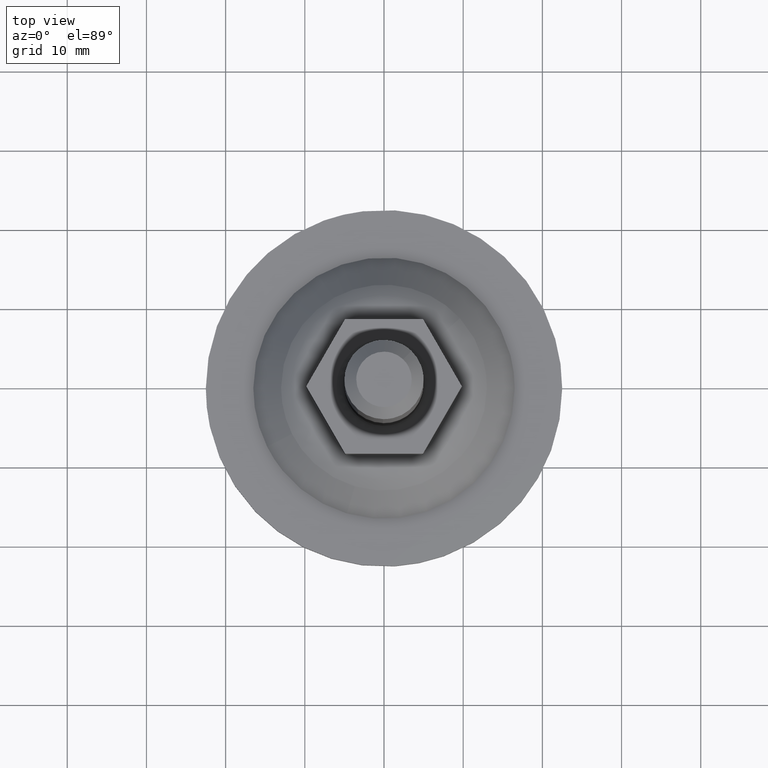
[diagram: clean part render]
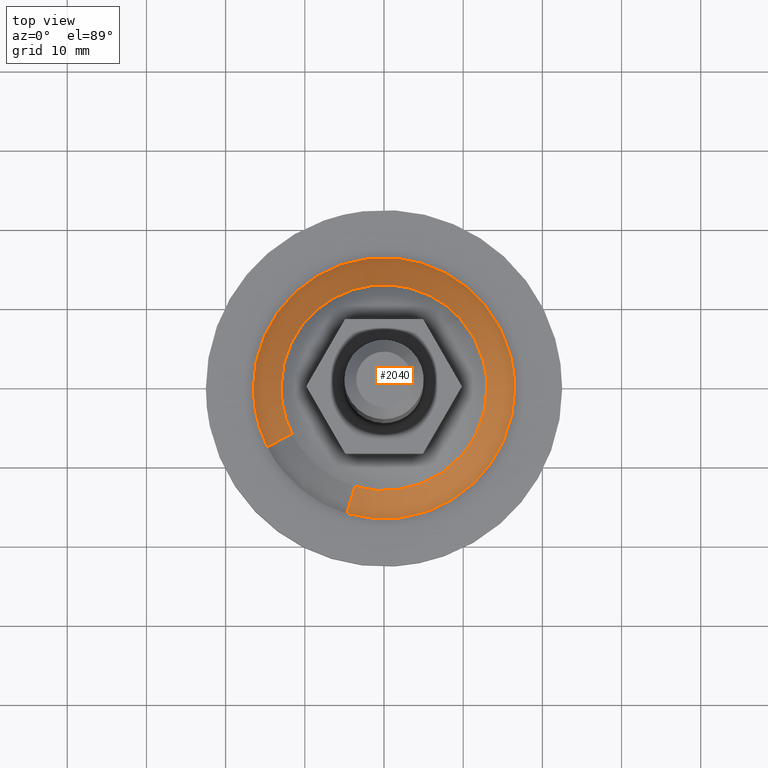
[diagram: same view with one face highlighted and labeled with its STEP entity id]
A machine part, top view. The second image highlights one B-rep face of the part: STEP entity #2040.
In plain terms, the highlighted face is a freeform B-spline surface patch.
Its self-contained STEP definition (entity closure, byte-faithful):
#1870=CARTESIAN_POINT('',(-11.545609309246176,-5.782003297031094,7.067842632040565));
#1871=CARTESIAN_POINT('',(-13.829122567811666,-1.222242504535822,7.067842632040566));
#1872=CARTESIAN_POINT('',(-12.380759833860211,3.667348140673875,7.067842632040566));
#1873=CARTESIAN_POINT('',(-8.713411693186334,16.048107974534080,7.067842632040566));
#1874=CARTESIAN_POINT('',(3.667348140673875,12.380759833860211,7.067842632040566));
#1875=CARTESIAN_POINT('',(16.048107974534080,8.713411693186334,7.067842632040566));
#1876=CARTESIAN_POINT('',(12.380759833860211,-3.667348140673875,7.067842632040566));
#1877=CARTESIAN_POINT('',(8.713411693186334,-16.048107974534080,7.067842632040566));
#1878=CARTESIAN_POINT('',(-3.667348140673875,-12.380759833860211,7.067842632040566));
#1879=CARTESIAN_POINT('',(-14.833537294960239,-7.428586854866791,2.898303934198985));
#1880=CARTESIAN_POINT('',(-17.767343400571384,-1.570309482064178,2.898303934198985));
#1881=CARTESIAN_POINT('',(-15.906519770111800,4.711725813788239,2.898303934198985));
#1882=CARTESIAN_POINT('',(-11.194793956323558,20.618245583900030,2.898303934198986));
#1883=CARTESIAN_POINT('',(4.711725813788239,15.906519770111800,2.898303934198985));
#1884=CARTESIAN_POINT('',(20.618245583900030,11.194793956323558,2.898303934198986));
#1885=CARTESIAN_POINT('',(15.906519770111800,-4.711725813788239,2.898303934198985));
#1886=CARTESIAN_POINT('',(11.194793956323558,-20.618245583900030,2.898303934198986));
#1887=CARTESIAN_POINT('',(-4.711725813788239,-15.906519770111800,2.898303934198985));
#1895=(BOUNDED_SURFACE()B_SPLINE_SURFACE(2,1,((#1870,#1879),(#1871,#1880),(#1872,#1881),(#1873,#1882),(#1874,#1883),(#1875,#1884),(#1876,#1885),(#1877,#1886),(#1878,#1887)),.UNSPECIFIED.,.F.,.F.,.U.)B_SPLINE_SURFACE_WITH_KNOTS((3,2,2,2,3),(2,2),(0.0,13.193613231267360,40.680307463074378,68.167001694881378,95.653695926688385),(0.0,5.559384930455442),.UNSPECIFIED.)GEOMETRIC_REPRESENTATION_ITEM()RATIONAL_B_SPLINE_SURFACE(((0.853787705168325,0.853787705168325),(0.859411254969543,0.859411254969543),(1.0,1.0),(0.707106781186548,0.707106781186548),(1.0,1.0),(0.707106781186548,0.707106781186548),(1.0,1.0),(0.707106781186548,0.707106781186548),(1.0,1.0)))REPRESENTATION_ITEM('')SURFACE());
#1896=CARTESIAN_POINT('',(-11.623846739051210,-5.821184345466673,6.968626958011663));
#1897=VERTEX_POINT('',#1896);
#1898=CARTESIAN_POINT('',(-13.000000007568699,0.0,6.968626958014780));
#1899=VERTEX_POINT('',#1898);
#1900=CARTESIAN_POINT('',(-11.623846739051206,-5.821184345466673,6.968626958011663));
#1901=CARTESIAN_POINT('',(-13.000000007568701,-3.073256478335910,6.968626958014780));
#1902=CARTESIAN_POINT('',(-13.000000007568699,0.0,6.968626958014780));
#1910=(BOUNDED_CURVE()B_SPLINE_CURVE(2,(#1900,#1901,#1902),.UNSPECIFIED.,.F.,.U.)B_SPLINE_CURVE_WITH_KNOTS((3,3),(0.923872947074374,1.0),.UNSPECIFIED.)CURVE()GEOMETRIC_REPRESENTATION_ITEM()RATIONAL_B_SPLINE_CURVE((0.875940413896637,0.910811609719325,1.0))REPRESENTATION_ITEM(''));
#1911=EDGE_CURVE('',#1897,#1899,#1910,.T.);
#1912=ORIENTED_EDGE('',*,*,#1911,.T.);
#1913=CARTESIAN_POINT('',(9.587670531229460,8.779326510678445,6.968626958026949));
#1914=VERTEX_POINT('',#1913);
#1915=CARTESIAN_POINT('',(-13.000000007568699,0.0,6.968626958014780));
#1916=CARTESIAN_POINT('',(-13.000000007568698,13.000000007568698,6.968626958014783));
#1917=CARTESIAN_POINT('',(0.0,13.000000007568699,6.968626958014780));
#1918=CARTESIAN_POINT('',(5.722845326469013,13.000000007568696,6.968626958014780));
#1919=CARTESIAN_POINT('',(9.587670531229461,8.779326510678445,6.968626958026949));
#1927=(BOUNDED_CURVE()B_SPLINE_CURVE(2,(#1915,#1916,#1917,#1918,#1919),.UNSPECIFIED.,.F.,.U.)B_SPLINE_CURVE_WITH_KNOTS((3,2,3),(0.0,0.250000000000000,0.381637486163504),.UNSPECIFIED.)CURVE()GEOMETRIC_REPRESENTATION_ITEM()RATIONAL_B_SPLINE_CURVE((1.0,0.707106781186548,1.0,0.845777091844240,0.853966311196074))REPRESENTATION_ITEM(''));
#1928=EDGE_CURVE('',#1899,#1914,#1927,.T.);
#1929=ORIENTED_EDGE('',*,*,#1928,.T.);
#1930=CARTESIAN_POINT('',(13.000000007568699,0.0,6.968626958014780));
#1931=VERTEX_POINT('',#1930);
#1932=CARTESIAN_POINT('',(9.587670531229460,8.779326510678445,6.968626958026949));
#1933=CARTESIAN_POINT('',(13.000000007568696,5.052811643825763,6.968626958014781));
#1934=CARTESIAN_POINT('',(13.000000007568699,0.0,6.968626958014780));
#1942=(BOUNDED_CURVE()B_SPLINE_CURVE(2,(#1932,#1933,#1934),.UNSPECIFIED.,.F.,.U.)B_SPLINE_CURVE_WITH_KNOTS((3,3),(0.381637486163504,0.500000000000000),.UNSPECIFIED.)CURVE()GEOMETRIC_REPRESENTATION_ITEM()RATIONAL_B_SPLINE_CURVE((0.853966311196074,0.861329689342307,1.0))REPRESENTATION_ITEM(''));
#1943=EDGE_CURVE('',#1914,#1931,#1942,.T.);
#1944=ORIENTED_EDGE('',*,*,#1943,.T.);
#1945=CARTESIAN_POINT('',(9.827640192634817,-8.509846557912065,6.968626958088358));
#1946=VERTEX_POINT('',#1945);
#1947=CARTESIAN_POINT('',(13.000000007568699,0.0,6.968626958014780));
#1948=CARTESIAN_POINT('',(13.000000007568691,-4.846230462169834,6.968626958014780));
#1949=CARTESIAN_POINT('',(9.827640192634817,-8.509846557912065,6.968626958088358));
#1957=(BOUNDED_CURVE()B_SPLINE_CURVE(2,(#1947,#1948,#1949),.UNSPECIFIED.,.F.,.U.)B_SPLINE_CURVE_WITH_KNOTS((3,3),(0.500000000000000,0.614170618178229),.UNSPECIFIED.)CURVE()GEOMETRIC_REPRESENTATION_ITEM()RATIONAL_B_SPLINE_CURVE((1.0,0.866240800591428,0.854652565050869))REPRESENTATION_ITEM(''));
#1958=EDGE_CURVE('',#1931,#1946,#1957,.T.);
#1959=ORIENTED_EDGE('',*,*,#1958,.T.);
#1960=CARTESIAN_POINT('',(-3.692199483335265,-12.464656560537080,6.968626958010627));
#1961=VERTEX_POINT('',#1960);
#1962=CARTESIAN_POINT('',(9.827640192634817,-8.509846557912065,6.968626958088358));
#1963=CARTESIAN_POINT('',(5.939573868646317,-13.000000007568699,6.968626958014781));
#1964=CARTESIAN_POINT('',(0.0,-13.000000007568699,6.968626958014780));
#1965=CARTESIAN_POINT('',(-1.884910294524431,-13.000000007568698,6.968626958014780));
#1966=CARTESIAN_POINT('',(-3.692199483335266,-12.464656560537083,6.968626958010627));
#1974=(BOUNDED_CURVE()B_SPLINE_CURVE(2,(#1962,#1963,#1964,#1965,#1966),.UNSPECIFIED.,.F.,.U.)B_SPLINE_CURVE_WITH_KNOTS((3,2,3),(0.614170618178229,0.750000000000000,0.798358482935392),.UNSPECIFIED.)CURVE()GEOMETRIC_REPRESENTATION_ITEM()RATIONAL_B_SPLINE_CURVE((0.854652565050869,0.840865980595120,1.0,0.943344513104470,0.908607213378811))REPRESENTATION_ITEM(''));
#1975=EDGE_CURVE('',#1946,#1961,#1974,.T.);
#1976=ORIENTED_EDGE('',*,*,#1975,.T.);
#1977=CARTESIAN_POINT('',(-4.686253187624420,-15.820525625323370,2.999999999998845));
#1978=VERTEX_POINT('',#1977);
#1979=CARTESIAN_POINT('',(-3.692199483335265,-12.464656560537080,6.968626958010627));
#1980=CARTESIAN_POINT('',(-4.686253187624420,-15.820525625323370,2.999999999998845));
#1981=QUASI_UNIFORM_CURVE('',1,(#1979,#1980),.UNSPECIFIED.,.F.,.U.);
#1982=EDGE_CURVE('',#1961,#1978,#1981,.T.);
#1983=ORIENTED_EDGE('',*,*,#1982,.T.);
#1984=CARTESIAN_POINT('',(16.500000000000000,0.0,3.0));
#1985=VERTEX_POINT('',#1984);
#1986=CARTESIAN_POINT('',(16.500000000000000,0.0,3.0));
#1987=CARTESIAN_POINT('',(16.499999999999993,-16.499999999999993,3.0));
#1988=CARTESIAN_POINT('',(0.0,-16.500000000000000,3.0));
#1989=CARTESIAN_POINT('',(-2.392386141621975,-16.499999999999996,3.000000000000000));
#1990=CARTESIAN_POINT('',(-4.686253187624420,-15.820525625323363,2.999999999998845));
#1998=(BOUNDED_CURVE()B_SPLINE_CURVE(2,(#1986,#1987,#1988,#1989,#1990),.UNSPECIFIED.,.F.,.U.)B_SPLINE_CURVE_WITH_KNOTS((3,2,3),(0.500000000000000,0.750000000000000,0.798358482934717),.UNSPECIFIED.)CURVE()GEOMETRIC_REPRESENTATION_ITEM()RATIONAL_B_SPLINE_CURVE((1.0,0.707106781186548,1.0,0.943344513105261,0.908607213379780))REPRESENTATION_ITEM(''));
#1999=EDGE_CURVE('',#1985,#1978,#1998,.T.);
#2000=ORIENTED_EDGE('',*,*,#1999,.F.);
#2001=CARTESIAN_POINT('',(-16.500000000000000,0.0,3.0));
#2002=VERTEX_POINT('',#2001);
#2003=CARTESIAN_POINT('',(-16.500000000000000,0.0,3.0));
#2004=CARTESIAN_POINT('',(-16.499999999999993,16.499999999999993,3.0));
#2005=CARTESIAN_POINT('',(0.0,16.500000000000000,3.0));
#2006=CARTESIAN_POINT('',(16.499999999999993,16.499999999999993,3.0));
#2007=CARTESIAN_POINT('',(16.500000000000000,0.0,3.0));
#2015=(BOUNDED_CURVE()B_SPLINE_CURVE(2,(#2003,#2004,#2005,#2006,#2007),.UNSPECIFIED.,.F.,.U.)B_SPLINE_CURVE_WITH_KNOTS((3,2,3),(0.0,0.250000000000000,0.500000000000000),.UNSPECIFIED.)CURVE()GEOMETRIC_REPRESENTATION_ITEM()RATIONAL_B_SPLINE_CURVE((1.0,0.707106781186548,1.0,0.707106781186548,1.0))REPRESENTATION_ITEM(''));
#2016=EDGE_CURVE('',#2002,#1985,#2015,.T.);
#2017=ORIENTED_EDGE('',*,*,#2016,.F.);
#2018=CARTESIAN_POINT('',(-14.753343929451701,-7.388426280293501,2.999999999999270));
#2019=VERTEX_POINT('',#2018);
#2020=CARTESIAN_POINT('',(-14.753343929451701,-7.388426280293501,2.999999999999270));
#2021=CARTESIAN_POINT('',(-16.500000000000004,-3.900671681730109,3.000000000000000));
#2022=CARTESIAN_POINT('',(-16.500000000000000,0.0,3.0));
#2030=(BOUNDED_CURVE()B_SPLINE_CURVE(2,(#2020,#2021,#2022),.UNSPECIFIED.,.F.,.U.)B_SPLINE_CURVE_WITH_KNOTS((3,3),(0.923872947075096,1.0),.UNSPECIFIED.)CURVE()GEOMETRIC_REPRESENTATION_ITEM()RATIONAL_B_SPLINE_CURVE((0.875940413897299,0.910811609720171,1.0))REPRESENTATION_ITEM(''));
#2031=EDGE_CURVE('',#2019,#2002,#2030,.T.);
#2032=ORIENTED_EDGE('',*,*,#2031,.F.);
#2033=CARTESIAN_POINT('',(-11.623846739051210,-5.821184345466673,6.968626958011663));
#2034=CARTESIAN_POINT('',(-14.753343929451701,-7.388426280293501,2.999999999999270));
#2035=QUASI_UNIFORM_CURVE('',1,(#2033,#2034),.UNSPECIFIED.,.F.,.U.);
#2036=EDGE_CURVE('',#1897,#2019,#2035,.T.);
#2037=ORIENTED_EDGE('',*,*,#2036,.F.);
#2038=EDGE_LOOP('',(#1912,#1929,#1944,#1959,#1976,#1983,#2000,#2017,#2032,#2037));
#2039=FACE_OUTER_BOUND('',#2038,.T.);
#2040=ADVANCED_FACE('',(#2039),#1895,.T.);